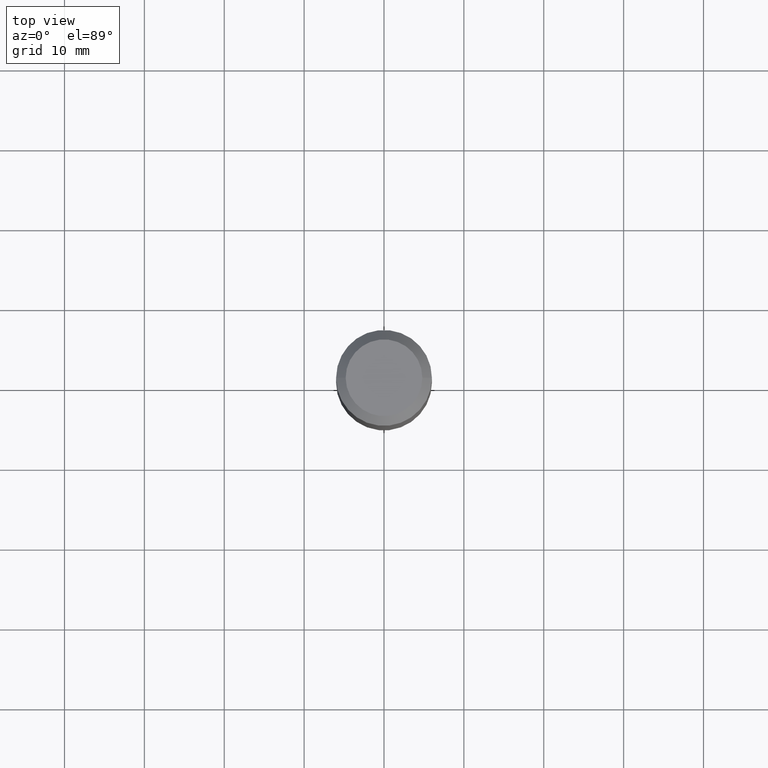
[diagram: clean part render]
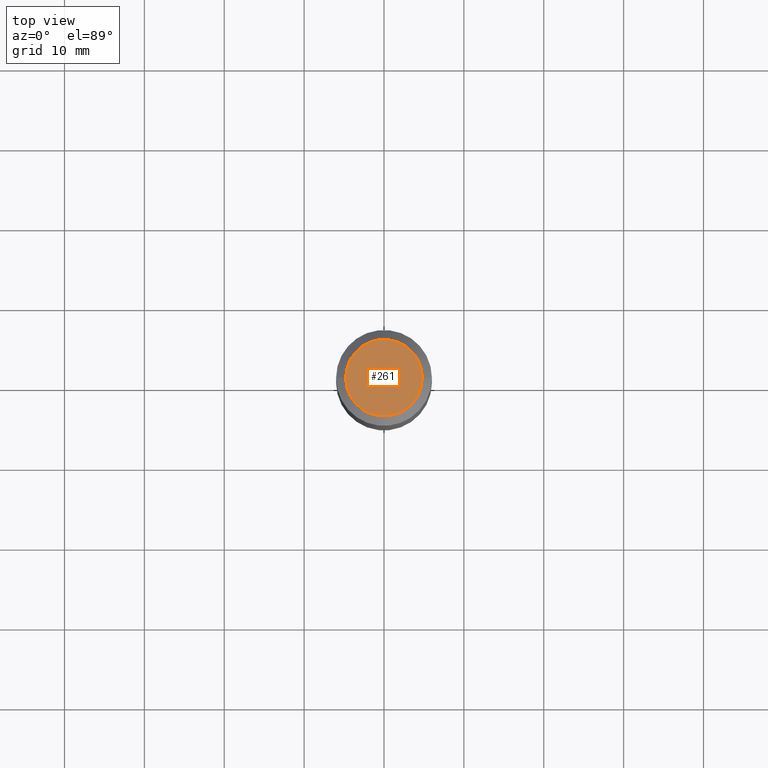
[diagram: same view with one face highlighted and labeled with its STEP entity id]
A machine part, top view. The second image highlights one B-rep face of the part: STEP entity #261.
In plain terms, the highlighted planar face has unit normal (0, -0, -1).
Its self-contained STEP definition (entity closure, byte-faithful):
#11 = EDGE_CURVE ( 'NONE', #28, #467, #494, .T. ) ;
#28 = VERTEX_POINT ( 'NONE', #153 ) ;
#89 = DIRECTION ( 'NONE',  ( -2.445468806185136597E-29, 3.491481338843145583E-15, 1.000000000000000000 ) ) ;
#115 = DIRECTION ( 'NONE',  ( -2.445468806185136597E-29, 3.491481338843145583E-15, 1.000000000000000000 ) ) ;
#136 = FACE_OUTER_BOUND ( 'NONE', #222, .T. ) ;
#146 = DIRECTION ( 'NONE',  ( 1.000000000000000000, -6.982962677686266711E-15, 4.876185090822587894E-29 ) ) ;
#149 = ORIENTED_EDGE ( 'NONE', *, *, #11, .T. ) ;
#153 = CARTESIAN_POINT ( 'NONE',  ( -0.1889600000000000168, 1.401969416799070942E-15, 3.855188123706346622E-18 ) ) ;
#155 = AXIS2_PLACEMENT_3D ( 'NONE', #167, #329, #331 ) ;
#167 = CARTESIAN_POINT ( 'NONE',  ( -4.713871149261273121E-47, 6.730158695841826722E-33, 1.927594061857931128E-18 ) ) ;
#170 = PLANE ( 'NONE',  #155 ) ;
#222 = EDGE_LOOP ( 'NONE', ( #149, #479 ) ) ;
#261 = ADVANCED_FACE ( 'NONE', ( #136 ), #170, .F. ) ;
#273 = EDGE_CURVE ( 'NONE', #467, #28, #400, .T. ) ;
#287 = CARTESIAN_POINT ( 'NONE',  ( 0.1889600000000000168, -1.540873453589747738E-15, 3.855188123725863225E-18 ) ) ;
#329 = DIRECTION ( 'NONE',  ( 2.438088387897960049E-29, -3.491481338843145188E-15, -1.000000000000000000 ) ) ;
#331 = DIRECTION ( 'NONE',  ( -1.000000000000000000, 6.982962677686265922E-15, -4.876176775795935793E-29 ) ) ;
#385 = CARTESIAN_POINT ( 'NONE',  ( -9.427742298522546243E-47, 1.346031739168365344E-32, 3.855188123715862256E-18 ) ) ;
#400 = CIRCLE ( 'NONE', #489, 0.1889600000000000168 ) ;
#403 = DIRECTION ( 'NONE',  ( 1.000000000000000000, -6.982962677686266711E-15, 4.876185090822587894E-29 ) ) ;
#416 = CARTESIAN_POINT ( 'NONE',  ( -9.427742298522546243E-47, 1.346031739168365344E-32, 3.855188123715862256E-18 ) ) ;
#460 = AXIS2_PLACEMENT_3D ( 'NONE', #385, #115, #146 ) ;
#467 = VERTEX_POINT ( 'NONE', #287 ) ;
#479 = ORIENTED_EDGE ( 'NONE', *, *, #273, .T. ) ;
#489 = AXIS2_PLACEMENT_3D ( 'NONE', #416, #89, #403 ) ;
#494 = CIRCLE ( 'NONE', #460, 0.1889600000000000168 ) ;